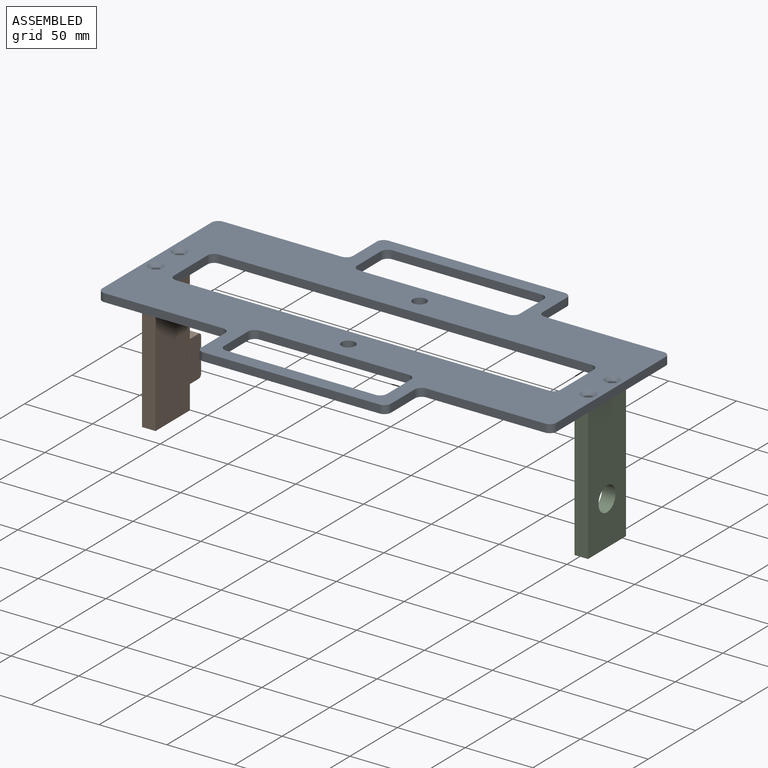
[diagram: assembled view]
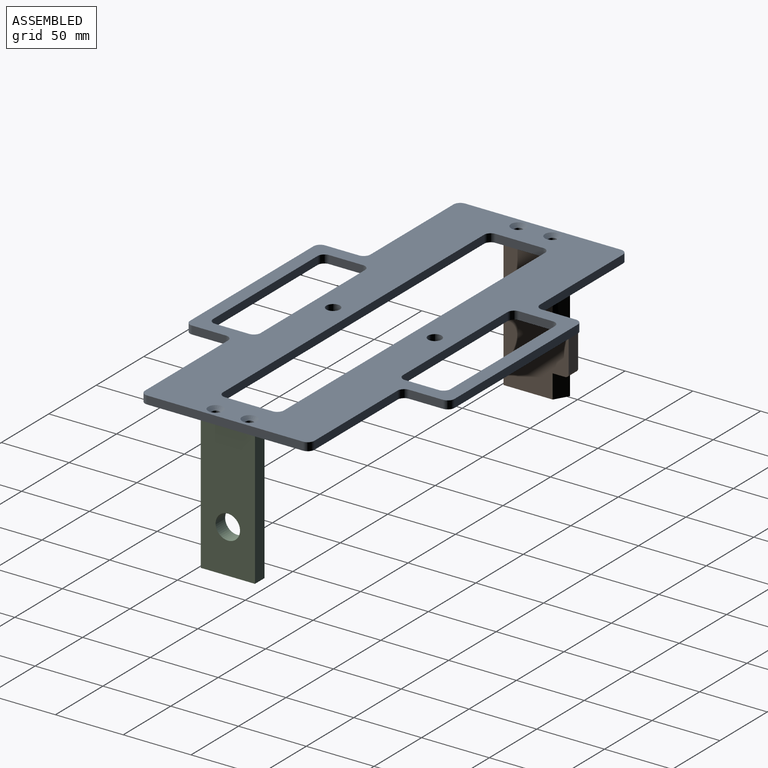
[diagram: assembled view, second angle]
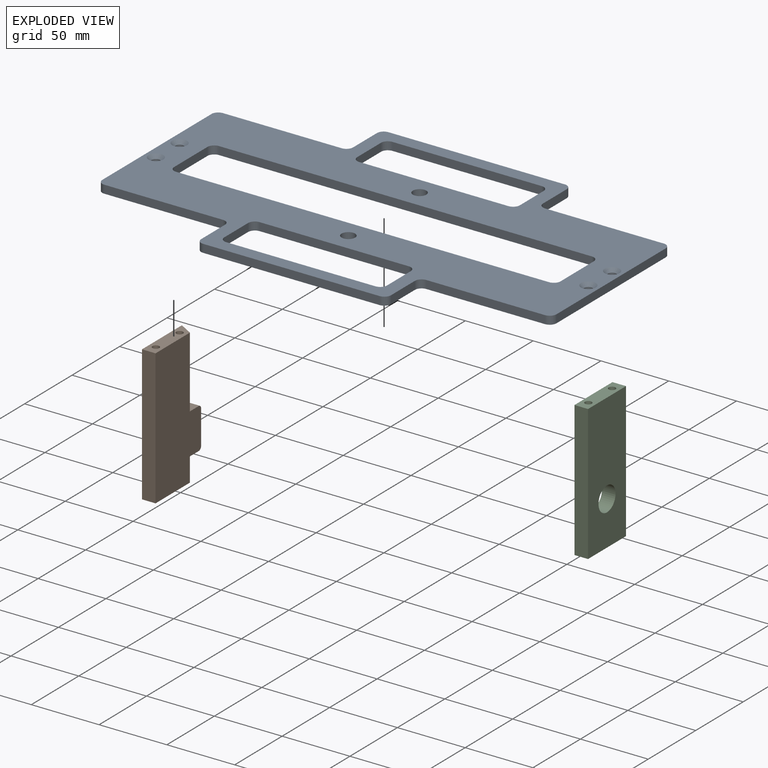
[diagram: exploded view]
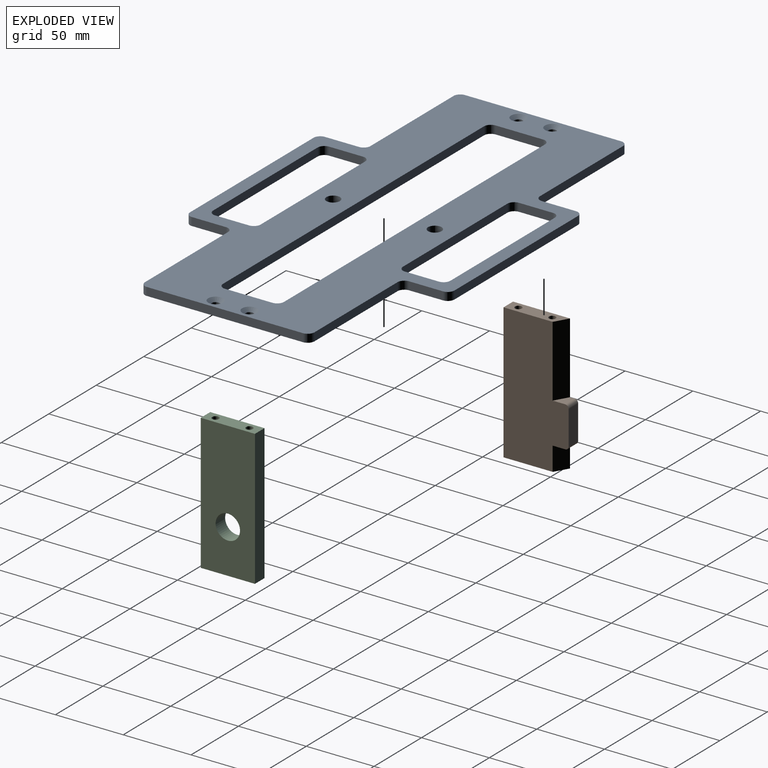
[diagram: exploded view, second angle]
ASSEMBLY  parts=3 mates=2
PART A: 60 faces, bbox 335x195x6 mm
  f0: plane 110x6mm, normal (0,-1,0), area 660mm2, adj f1,f34,f42,f43
  f1: cylinder r=5mm len=6mm, axis (0,0,-1), area 47.1mm2, adj f0,f2,f42,f43
  f2: plane 25x6mm, normal (-1,0,0), area 150mm2, adj f1,f3,f42,f43
  f3: cylinder r=5mm len=6mm, axis (0,0,-1), area 47.1mm2, adj f2,f4,f42,f43
  f4: plane 110x6mm, normal (0,1,0), area 660mm2, adj f3,f5,f42,f43
  f5: cylinder r=5mm len=6mm, axis (0,0,-1), area 47.1mm2, adj f4,f6,f42,f43
  f6: plane 25x6mm, normal (1,0,0), area 150mm2, adj f5,f34,f42,f43
  f7: plane 110x6mm, normal (0,-1,0), area 660mm2, adj f8,f36,f42,f43
  f8: cylinder r=5mm len=6mm, axis (0,0,-1), area 47.1mm2, adj f7,f9,f42,f43
  f9: plane 25x6mm, normal (-1,0,0), area 150mm2, adj f8,f10,f42,f43
  f10: cylinder r=5mm len=6mm, axis (0,0,-1), area 47.1mm2, adj f9,f11,f42,f43
  f11: plane 110x6mm, normal (0,1,0), area 660mm2, adj f10,f12,f42,f43
  f12: cylinder r=5mm len=6mm, axis (0,0,-1), area 47.1mm2, adj f11,f13,f42,f43
  f13: plane 25x6mm, normal (1,0,0), area 150mm2, adj f12,f36,f42,f43
  f14: cylinder r=5mm len=6mm, axis (0,0,-1), area 47.1mm2, adj f15,f37,f42,f43
  f15: plane 275x6mm, normal (0,1,0), area 1650mm2, adj f14,f16,f42,f43
  f16: cylinder r=5mm len=6mm, axis (0,0,-1), area 47.1mm2, adj f15,f17,f42,f43
  f17: plane 35x6mm, normal (1,0,0), area 210mm2, adj f16,f18,f42,f43
  f18: cylinder r=5mm len=6mm, axis (0,0,-1), area 47.1mm2, adj f17,f19,f42,f43
  f19: plane 275x6mm, normal (0,-1,0), area 1650mm2, adj f18,f20,f42,f43
  f20: cylinder r=5mm len=6mm, axis (0,0,-1), area 47.1mm2, adj f19,f37,f42,f43
  f21: plane 87.5x6mm, normal (0,-1,0), area 525mm2, adj f42,f43,f48,f49
  f22: plane 25x6mm, normal (-1,0,0), area 150mm2, adj f42,f43,f49,f56
  f23: plane 130x6mm, normal (0,-1,0), area 780mm2, adj f42,f43,f56,f57
  f24: plane 25x6mm, normal (1,0,0), area 150mm2, adj f42,f43,f55,f57
  f25: plane 87.5x6mm, normal (0,-1,0), area 525mm2, adj f42,f43,f55,f58
  f26: plane 115x6mm, normal (1,0,0), area 690mm2, adj f42,f43,f58,f59
  f27: plane 87.5x6mm, normal (0,1,0), area 525mm2, adj f42,f43,f53,f59
  f28: plane 25x6mm, normal (1,0,0), area 150mm2, adj f42,f43,f53,f54
  f29: plane 130x6mm, normal (0,1,0), area 780mm2, adj f42,f43,f52,f54
  f30: plane 25x6mm, normal (-1,0,0), area 150mm2, adj f42,f43,f50,f52
  f31: plane 87.5x6mm, normal (0,1,0), area 525mm2, adj f42,f43,f50,f51
  f32: cylinder r=3mm len=6mm, axis (0,0,-1), area 66mm2, adj f43,f45
  f33: cylinder r=3mm len=6mm, axis (0,0,-1), area 66mm2, adj f43,f44
  f34: cylinder r=5mm len=6mm, axis (0,0,-1), area 47.1mm2, adj f0,f6,f42,f43
  f35: cylinder r=5mm len=10mm, axis (0,0,-1), area 188.5mm2, adj f42,f43
  f36: cylinder r=5mm len=6mm, axis (0,0,-1), area 47.1mm2, adj f7,f13,f42,f43
  f37: plane 35x6mm, normal (-1,0,0), area 210mm2, adj f14,f20,f42,f43
  f38: cylinder r=3mm len=6mm, axis (0,0,-1), area 66mm2, adj f43,f47
  f39: cylinder r=3mm len=6mm, axis (0,0,-1), area 66mm2, adj f43,f46
  f40: plane 115x6mm, normal (-1,0,0), area 690mm2, adj f42,f43,f48,f51
  f41: cylinder r=5mm len=10mm, axis (0,0,-1), area 188.5mm2, adj f42,f43
  f42: plane 335x195mm, normal (0,0,1), area 29955.7mm2, adj f0,f1,f2,f3,f4,f5,f6,f7
  f43: plane 335x195mm, normal (0,0,-1), area 30222.7mm2, adj f0,f1,f2,f3,f4,f5,f6,f7
  f44: cone r=5.5mm half-angle=45deg, axis (0,0,1), area 94.4mm2, adj f33,f42
  f45: cone r=5.5mm half-angle=45deg, axis (0,0,1), area 94.4mm2, adj f32,f42
  f46: cone r=3mm half-angle=45deg, axis (0,0,1), area 94.4mm2, adj f39,f42
  f47: cone r=3mm half-angle=45deg, axis (0,0,1), area 94.4mm2, adj f38,f42
  f48: cylinder r=5mm len=6mm, axis (0,0,-1), area 47.1mm2, adj f21,f40,f42,f43
  f49: cylinder r=5mm len=6mm, axis (0,0,1), area 47.1mm2, adj f21,f22,f42,f43
  f50: cylinder r=5mm len=6mm, axis (0,0,-1), area 47.1mm2, adj f30,f31,f42,f43
  f51: cylinder r=5mm len=6mm, axis (0,0,1), area 47.1mm2, adj f31,f40,f42,f43
  f52: cylinder r=5mm len=6mm, axis (0,0,1), area 47.1mm2, adj f29,f30,f42,f43
  f53: cylinder r=5mm len=6mm, axis (0,0,1), area 47.1mm2, adj f27,f28,f42,f43
  f54: cylinder r=5mm len=6mm, axis (0,0,-1), area 47.1mm2, adj f28,f29,f42,f43
  f55: cylinder r=5mm len=6mm, axis (0,0,-1), area 47.1mm2, adj f24,f25,f42,f43
  f56: cylinder r=5mm len=6mm, axis (0,0,-1), area 47.1mm2, adj f22,f23,f42,f43
  f57: cylinder r=5mm len=6mm, axis (0,0,1), area 47.1mm2, adj f23,f24,f42,f43
  f58: cylinder r=5mm len=6mm, axis (0,0,1), area 47.1mm2, adj f25,f26,f42,f43
  f59: cylinder r=5mm len=6mm, axis (0,0,-1), area 47.1mm2, adj f26,f27,f42,f43
PART B: 16 faces, bbox 100x48x10 mm
  f0: plane 17.5x10mm, normal (0,0.87,0.5), area 202.1mm2, adj f2,f3,f5,f11
  f1: plane 100x10mm, normal (0,-1,0), area 1000mm2, adj f2,f3,f4,f5
  f2: plane 100x48mm, normal (0,0,1), area 3973.2mm2, adj f0,f1,f4,f5,f6,f11,f12,f13
  f3: plane 100x48mm, normal (0,0,-1), area 4377.3mm2, adj f0,f1,f4,f5,f6,f11,f12,f13
  f4: plane 42x10mm, normal (-1,0,0), area 351.9mm2, adj f1,f2,f3,f6,f7,f9
  f5: plane 42x10mm, normal (1,0,0), area 391.1mm2, adj f0,f1,f2,f3
  f6: plane 52.5x10mm, normal (0,0.87,0.5), area 606.2mm2, adj f2,f3,f4,f13
  f7: cylinder r=2.5mm len=15mm, axis (-1,0,0), area 235.6mm2, adj f4,f8
  f8: plane 5x5mm, normal (-1,0,0), area 19.6mm2, adj f7
  f9: cylinder r=2.5mm len=15mm, axis (-1,0,0), area 235.6mm2, adj f4,f10
  f10: plane 5x5mm, normal (-1,0,0), area 19.6mm2, adj f9
  f11: plane 10x9.27mm, normal (1,0,0), area 63.9mm2, adj f0,f2,f3,f14
  f12: plane 25x10mm, normal (0,1,0), area 250mm2, adj f2,f3,f14,f15
  f13: plane 10x9.27mm, normal (-1,0,0), area 63.9mm2, adj f2,f3,f6,f15
  f14: cylinder r=2.5mm len=10mm, axis (0,0,1), area 39.3mm2, adj f2,f3,f11,f12
  f15: cylinder r=2.5mm len=10mm, axis (0,0,-1), area 39.3mm2, adj f2,f3,f12,f13
PART C: 11 faces, bbox 40x10x100 mm
  f0: plane 100x10mm, normal (-1,0,0), area 1000mm2, adj f2,f3,f4,f10
  f1: plane 100x10mm, normal (1,0,0), area 1000mm2, adj f2,f3,f4,f10
  f2: plane 100x40mm, normal (0,-1,0), area 3745.5mm2, adj f0,f1,f4,f5,f10
  f3: plane 100x40mm, normal (0,1,0), area 3745.5mm2, adj f0,f1,f4,f5,f10
  f4: plane 40x10mm, normal (0,0,1), area 360.7mm2, adj f0,f1,f2,f3,f6,f8
  f5: cylinder r=9mm len=18mm, axis (0,1,0), area 565.5mm2, adj f2,f3
  f6: cylinder r=2.5mm len=15mm, axis (0,0,1), area 235.6mm2, adj f4,f7
  f7: plane 5x5mm, normal (0,0,1), area 19.6mm2, adj f6
  f8: cylinder r=2.5mm len=15mm, axis (0,0,1), area 235.6mm2, adj f4,f9
  f9: plane 5x5mm, normal (0,0,1), area 19.6mm2, adj f8
  f10: plane 40x10mm, normal (0,0,-1), area 400mm2, adj f0,f1,f2,f3
PLACE A t=(-51.44,6.5,90.47)mm
PLACE B rot(axis=(0,1,0),90deg) t=(-206.12,34.69,17.2)mm
PLACE C rot(axis=(0,0,1),90deg) t=(112.88,38.17,4.79)mm
MATE fastened C.f6 <-> A.f32  axis (0,0,1) through (117.88,50.67,90.47)mm
MATE fastened B.f7 <-> A.f39  axis (0,0,1) through (-201.12,25.67,90.47)mm
